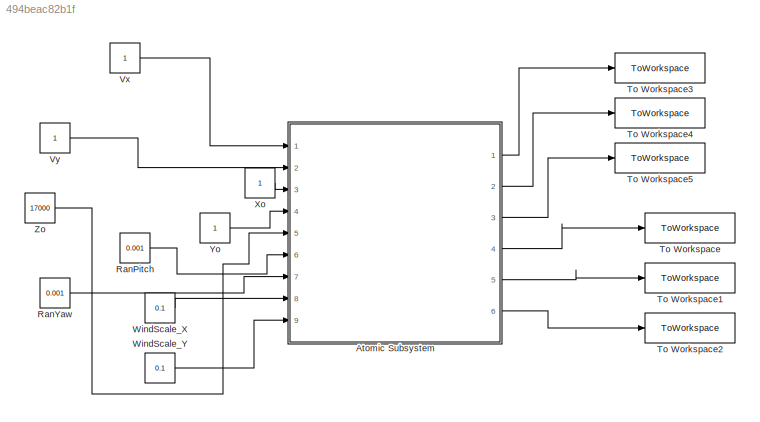
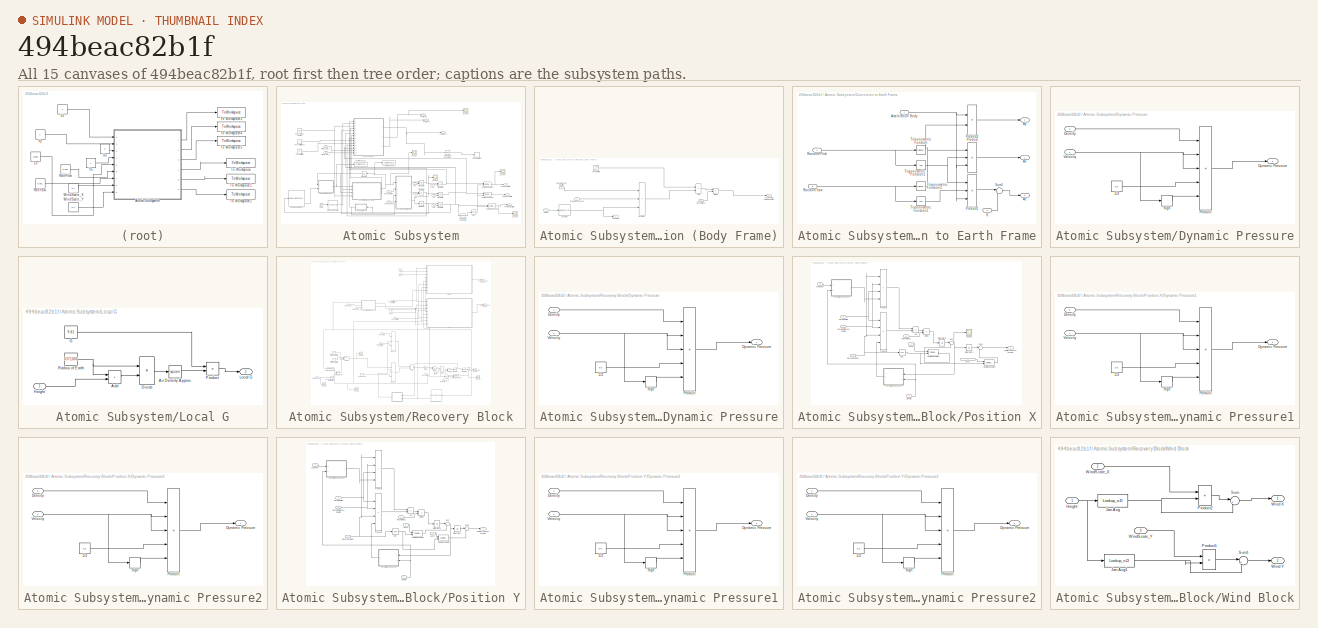
[diagram: thumbnail index - all 15 canvases of the model, root first then tree order]
MODEL slx_494beac82b1f
KIND model
CONFIG AbsTol = auto
CONFIG EnableMultiTasking = off
CONFIG FixedStep = 0.5
CONFIG MaxStep = auto
CONFIG MinStep = auto
CONFIG RelTol = 1e-3
CONFIG SampleTimeConstraint = Unconstrained
CONFIG Solver = ode4
CONFIG SolverName = ode4
CONFIG StartTime = 0.0
CONFIG StopTime = 50000
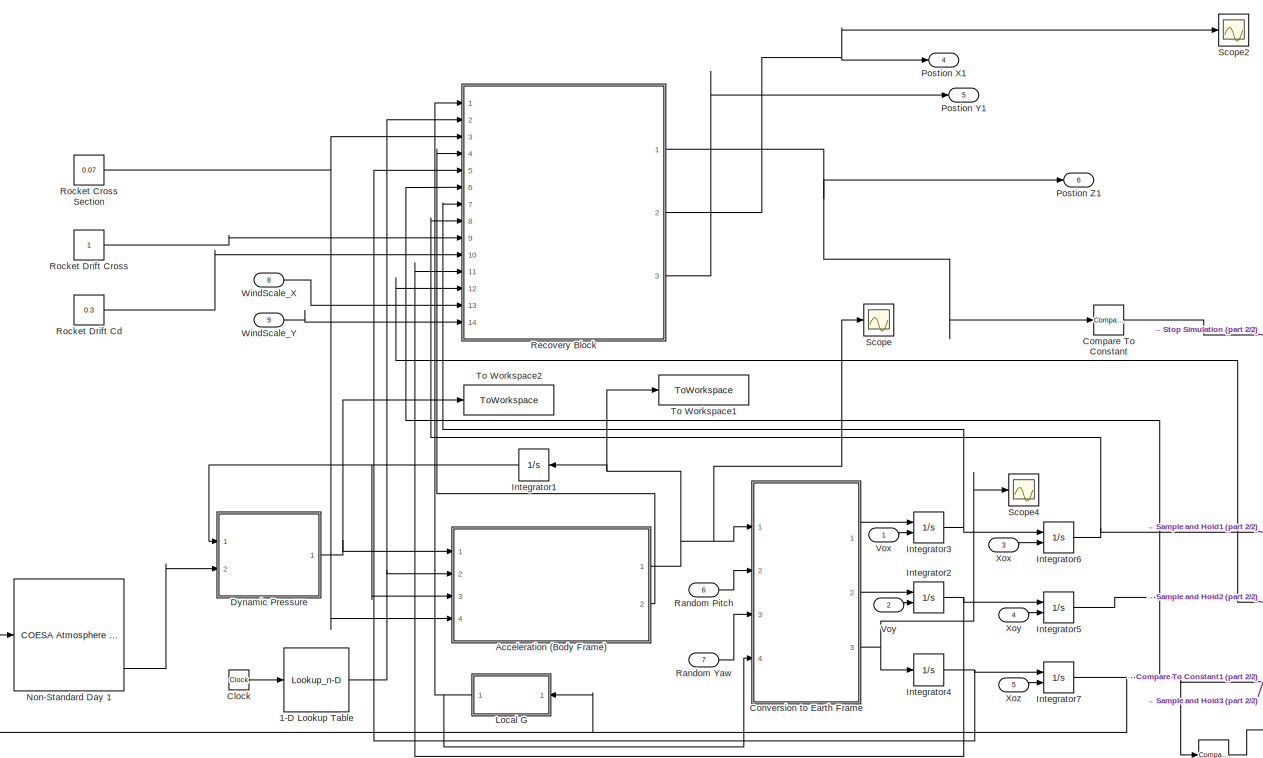
[diagram: Atomic Subsystem - part 1/2, most of the canvas]
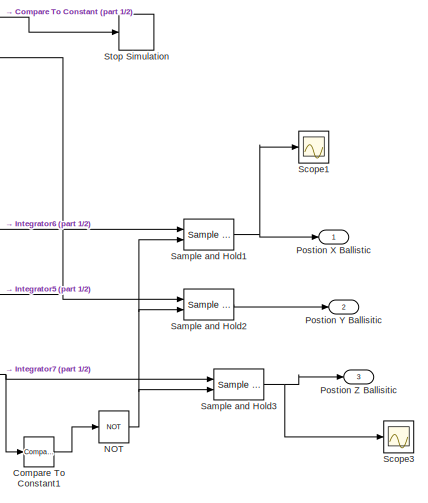
[diagram: Atomic Subsystem - part 2/2, bottom right region]
BLOCK [SubSystem] Atomic Subsystem
  Ports = [9, 6]
  RequestExecContextInheritance = off
  TreatAsAtomicUnit = on
BLOCK [Lookup_n-D] Atomic Subsystem/1-D Lookup Table
  BreakpointsForDimension1 = [0,2,5]
  ExtrapMethod = Clip
  InternalRulePriority = Speed
  NumberOfTableDimensions = 1
  Ports = [1, 1]
  RndMeth = Simplest
  Table = [44,30,22]
  UseLastTableValue = on
BLOCK [SubSystem] Atomic Subsystem/Acceleration (Body Frame)
  Ports = [4, 2]
  RequestExecContextInheritance = off
  TreatAsAtomicUnit = on
BLOCK [Outport] Atomic Subsystem/Acceleration (Body Frame)/Acceleration (BODY FRAME)
BLOCK [Sum] Atomic Subsystem/Acceleration (Body Frame)/Add
  IconShape = rectangular
  Inputs = +-
  Ports = [2, 1]
BLOCK [Lookup_n-D] Atomic Subsystem/Acceleration (Body Frame)/Cd Table
  BreakpointsForDimension1 = [0,0.05,0.1,0.6,0.9,1.1,1.2,2,3,4,5]
  ExtrapMethod = Clip
  InternalRulePriority = Speed
  NumberOfTableDimensions = 1
  Ports = [1, 1]
  RndMeth = Simplest
  Table = [0.48,0.4,0.42,0.4,0.44,0.54,0.52,0.36,0.24,0.18,0.14]
  UseLastTableValue = on
BLOCK [Product] Atomic Subsystem/Acceleration (Body Frame)/Divide
  Inputs = */
  Ports = [2, 1]
BLOCK [Inport] Atomic Subsystem/Acceleration (Body Frame)/Dynamc Pressure
BLOCK [Product] Atomic Subsystem/Acceleration (Body Frame)/Product
  Inputs = 3
  Ports = [3, 1]
BLOCK [Outport] Atomic Subsystem/Acceleration (Body Frame)/Rocket Cd
  Port = 2
BLOCK [Inport] Atomic Subsystem/Acceleration (Body Frame)/Rocket Cross Section
  Port = 4
BLOCK [Inport] Atomic Subsystem/Acceleration (Body Frame)/Rocket Mass
  Port = 2
BLOCK [Step] Atomic Subsystem/Acceleration (Body Frame)/Thrust Time
  After = 0
  Before = 5000
  SampleTime = 0
  Time = 6
  ZeroCross = off
BLOCK [Inport] Atomic Subsystem/Acceleration (Body Frame)/Velocity
  Port = 3
BLOCK [Clock] Atomic Subsystem/Clock
BLOCK [Reference] Atomic Subsystem/Compare To Constant  REF=simulink/Logic and Bit
Operations/Compare
To Constant
  Ports = [1, 1]
  SourceBlock = simulink/Logic and Bit\nOperations/Compare\nTo Constant
  SourceProductBaseCode = SL
  SourceType = Compare To Constant
BLOCK [Reference] Atomic Subsystem/Compare To Constant1  REF=simulink/Logic and Bit
Operations/Compare
To Constant
  Ports = [1, 1]
  SourceBlock = simulink/Logic and Bit\nOperations/Compare\nTo Constant
  SourceProductBaseCode = SL
  SourceType = Compare To Constant
BLOCK [SubSystem] Atomic Subsystem/Conversion to Earth Frame
  Ports = [4, 3]
  RequestExecContextInheritance = off
  TreatAsAtomicUnit = on
BLOCK [Inport] Atomic Subsystem/Conversion to Earth Frame/Acceleration Body
BLOCK [Outport] Atomic Subsystem/Conversion to Earth Frame/Ax
BLOCK [Outport] Atomic Subsystem/Conversion to Earth Frame/Ay
  Port = 2
BLOCK [Outport] Atomic Subsystem/Conversion to Earth Frame/Az
  Port = 3
BLOCK [Product] Atomic Subsystem/Conversion to Earth Frame/Product
  Inputs = 3
  Ports = [3, 1]
BLOCK [Product] Atomic Subsystem/Conversion to Earth Frame/Product1
  Inputs = 3
  Ports = [3, 1]
BLOCK [Product] Atomic Subsystem/Conversion to Earth Frame/Product2
  Ports = [2, 1]
BLOCK [Inport] Atomic Subsystem/Conversion to Earth Frame/Random Pitch
  Port = 2
BLOCK [Inport] Atomic Subsystem/Conversion to Earth Frame/Random Yaw
  Port = 3
BLOCK [Sum] Atomic Subsystem/Conversion to Earth Frame/Sum1
  Inputs = |+-
  Ports = [2, 1]
BLOCK [Trigonometry] Atomic Subsystem/Conversion to Earth Frame/Trigonometric Function
  Ports = [1, 1]
BLOCK [Trigonometry] Atomic Subsystem/Conversion to Earth Frame/Trigonometric Function1
  Operator = cos
  Ports = [1, 1]
BLOCK [Trigonometry] Atomic Subsystem/Conversion to Earth Frame/Trigonometric Function2
  Operator = cos
  Ports = [1, 1]
BLOCK [Trigonometry] Atomic Subsystem/Conversion to Earth Frame/Trigonometric Function3
  Ports = [1, 1]
BLOCK [Inport] Atomic Subsystem/Conversion to Earth Frame/g
  Port = 4
BLOCK [SubSystem] Atomic Subsystem/Dynamic Pressure
  Ports = [2, 1]
  RequestExecContextInheritance = off
  TreatAsAtomicUnit = on
BLOCK [Constant] Atomic Subsystem/Dynamic Pressure/1//2
  Value = 0.5
BLOCK [Inport] Atomic Subsystem/Dynamic Pressure/Density
  Port = 2
BLOCK [Outport] Atomic Subsystem/Dynamic Pressure/Dynamic Pressure
BLOCK [Product] Atomic Subsystem/Dynamic Pressure/Product
  Inputs = 5
  Ports = [5, 1]
BLOCK [Signum] Atomic Subsystem/Dynamic Pressure/Sign
BLOCK [Inport] Atomic Subsystem/Dynamic Pressure/Velocity 
BLOCK [Integrator] Atomic Subsystem/Integrator1
  InitialCondition = 1
  Ports = [1, 1]
BLOCK [Integrator] Atomic Subsystem/Integrator2
  InitialConditionSource = external
  Ports = [2, 1]
BLOCK [Integrator] Atomic Subsystem/Integrator3
  InitialConditionSource = external
  Ports = [2, 1]
BLOCK [Integrator] Atomic Subsystem/Integrator4
  Ports = [1, 1]
BLOCK [Integrator] Atomic Subsystem/Integrator5
  InitialConditionSource = external
  Ports = [2, 1]
BLOCK [Integrator] Atomic Subsystem/Integrator6
  InitialConditionSource = external
  Ports = [2, 1]
BLOCK [Integrator] Atomic Subsystem/Integrator7
  InitialConditionSource = external
  Ports = [2, 1]
BLOCK [SubSystem] Atomic Subsystem/Local G
  Ports = [1, 1]
  RequestExecContextInheritance = off
BLOCK [Sum] Atomic Subsystem/Local G/Add
  IconShape = rectangular
  Ports = [2, 1]
BLOCK [Math] Atomic Subsystem/Local G/Air Density Approx.
  Operator = square
  OutMax = 10000
  OutMin = 0
  Ports = [1, 1]
  SignedPower = on
BLOCK [Product] Atomic Subsystem/Local G/Divide
  Inputs = */
  Ports = [2, 1]
BLOCK [Constant] Atomic Subsystem/Local G/G
  Value = 9.81
BLOCK [Inport] Atomic Subsystem/Local G/Height
BLOCK [Outport] Atomic Subsystem/Local G/Local G
  VectorParamsAs1DForOutWhenUnconnected = off
BLOCK [Product] Atomic Subsystem/Local G/Product
  Ports = [2, 1]
BLOCK [Constant] Atomic Subsystem/Local G/Radius of Earth
  Value = 6371000
BLOCK [Logic] Atomic Subsystem/NOT
  AllPortsSameDT = off
  IconShape = distinctive
  Operator = NOT
  OutDataTypeStr = boolean
  Ports = [1, 1]
BLOCK [Reference] Atomic Subsystem/Non-Standard Day 1  REF=aerolibatmos2/COESA Atmosphere Model
  Ports = [1, 4]
  SourceBlock = aerolibatmos2/COESA Atmosphere Model
  SourceProductBaseCode = AE
  SourceType = Atmosphere Model
BLOCK [Outport] Atomic Subsystem/Postion X Ballistic
BLOCK [Outport] Atomic Subsystem/Postion X1
  Port = 4
BLOCK [Outport] Atomic Subsystem/Postion Y Ballisitic
  Port = 2
BLOCK [Outport] Atomic Subsystem/Postion Y1
  Port = 5
BLOCK [Outport] Atomic Subsystem/Postion Z Ballisitic
  Port = 3
BLOCK [Outport] Atomic Subsystem/Postion Z1
  Port = 6
BLOCK [Inport] Atomic Subsystem/Random Pitch
  Port = 6
BLOCK [Inport] Atomic Subsystem/Random Yaw
  Port = 7
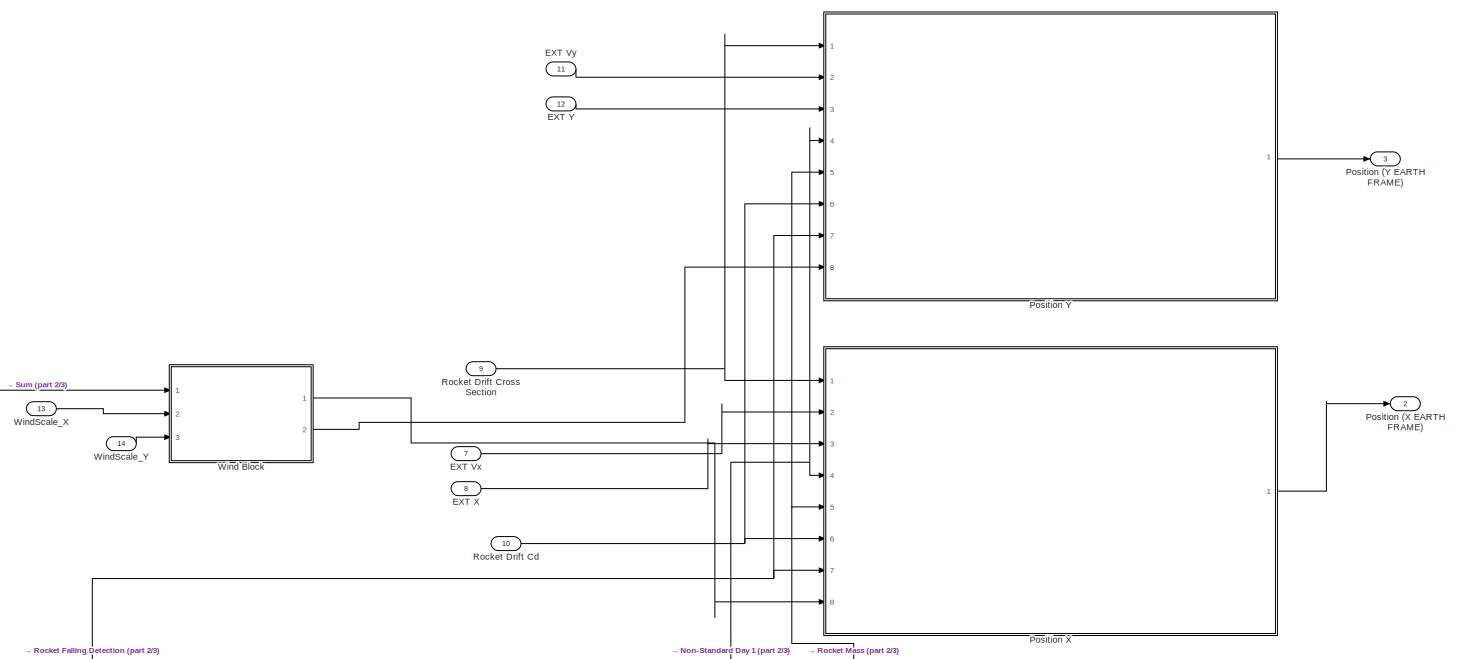
[diagram: Atomic Subsystem/Recovery Block - part 1/3, full width, top band]
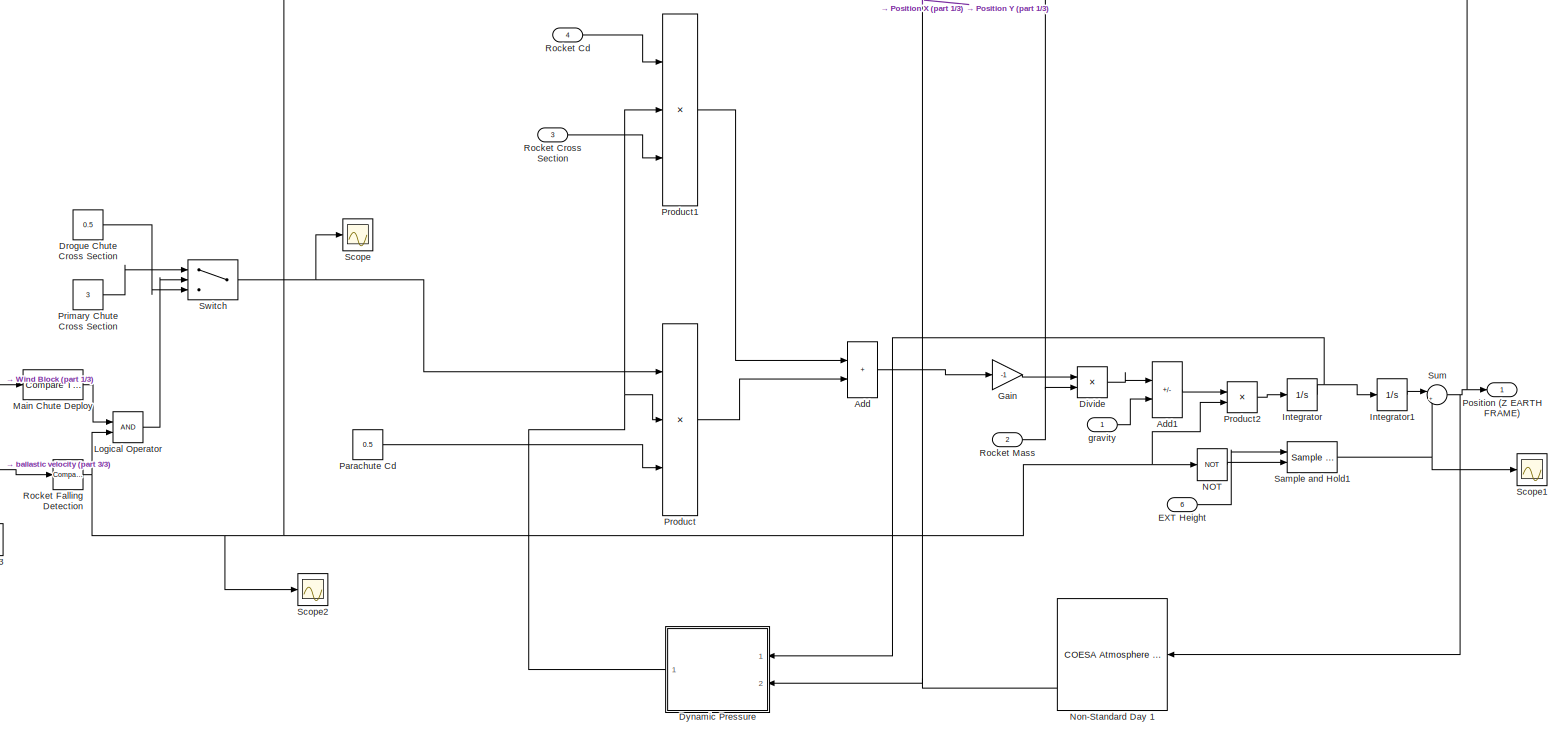
[diagram: Atomic Subsystem/Recovery Block - part 2/3, full width, bottom band]
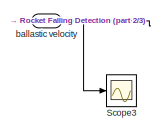
[diagram: Atomic Subsystem/Recovery Block - part 3/3, bottom left region]
BLOCK [SubSystem] Atomic Subsystem/Recovery Block
  Ports = [14, 3]
  RequestExecContextInheritance = off
  TreatAsAtomicUnit = on
BLOCK [Sum] Atomic Subsystem/Recovery Block/Add
  IconShape = rectangular
  Ports = [2, 1]
BLOCK [Sum] Atomic Subsystem/Recovery Block/Add1
  IconShape = rectangular
  Inputs = +-
  Ports = [2, 1]
BLOCK [Product] Atomic Subsystem/Recovery Block/Divide
  Inputs = */
  Ports = [2, 1]
BLOCK [Constant] Atomic Subsystem/Recovery Block/Drogue Chute Cross Section
  Value = 0.5
BLOCK [SubSystem] Atomic Subsystem/Recovery Block/Dynamic Pressure
  Ports = [2, 1]
  RequestExecContextInheritance = off
  TreatAsAtomicUnit = on
BLOCK [Constant] Atomic Subsystem/Recovery Block/Dynamic Pressure/1//2
  Value = 0.5
BLOCK [Inport] Atomic Subsystem/Recovery Block/Dynamic Pressure/Density
  Port = 2
BLOCK [Outport] Atomic Subsystem/Recovery Block/Dynamic Pressure/Dynamic Pressure
BLOCK [Product] Atomic Subsystem/Recovery Block/Dynamic Pressure/Product
  Inputs = 5
  Ports = [5, 1]
BLOCK [Signum] Atomic Subsystem/Recovery Block/Dynamic Pressure/Sign
BLOCK [Inport] Atomic Subsystem/Recovery Block/Dynamic Pressure/Velocity 
BLOCK [Inport] Atomic Subsystem/Recovery Block/EXT Height
  Port = 6
BLOCK [Inport] Atomic Subsystem/Recovery Block/EXT Vx
  Port = 7
BLOCK [Inport] Atomic Subsystem/Recovery Block/EXT Vy
  Port = 11
BLOCK [Inport] Atomic Subsystem/Recovery Block/EXT X
  Port = 8
BLOCK [Inport] Atomic Subsystem/Recovery Block/EXT Y
  Port = 12
BLOCK [Gain] Atomic Subsystem/Recovery Block/Gain
  Gain = -1
BLOCK [Integrator] Atomic Subsystem/Recovery Block/Integrator
  Ports = [1, 1]
BLOCK [Integrator] Atomic Subsystem/Recovery Block/Integrator1
  Ports = [1, 1]
BLOCK [Logic] Atomic Subsystem/Recovery Block/Logical Operator
  AllPortsSameDT = off
  OutDataTypeStr = boolean
  Ports = [2, 1]
BLOCK [Reference] Atomic Subsystem/Recovery Block/Main Chute Deploy  REF=simulink/Logic and Bit
Operations/Compare
To Constant
  Ports = [1, 1]
  SourceBlock = simulink/Logic and Bit\nOperations/Compare\nTo Constant
  SourceProductBaseCode = SL
  SourceType = Compare To Constant
BLOCK [Logic] Atomic Subsystem/Recovery Block/NOT
  AllPortsSameDT = off
  IconShape = distinctive
  Operator = NOT
  OutDataTypeStr = boolean
  Ports = [1, 1]
BLOCK [Reference] Atomic Subsystem/Recovery Block/Non-Standard Day 1  REF=aerolibatmos2/COESA Atmosphere Model
  Ports = [1, 4]
  SourceBlock = aerolibatmos2/COESA Atmosphere Model
  SourceProductBaseCode = AE
  SourceType = Atmosphere Model
BLOCK [Constant] Atomic Subsystem/Recovery Block/Parachute Cd
  Value = 0.5
BLOCK [Outport] Atomic Subsystem/Recovery Block/Position (X EARTH FRAME)
  Port = 2
BLOCK [Outport] Atomic Subsystem/Recovery Block/Position (Y EARTH FRAME)
  Port = 3
BLOCK [Outport] Atomic Subsystem/Recovery Block/Position (Z EARTH FRAME)
BLOCK [SubSystem] Atomic Subsystem/Recovery Block/Position X
  Ports = [8, 1]
  RequestExecContextInheritance = off
  TreatAsAtomicUnit = on
BLOCK [Sum] Atomic Subsystem/Recovery Block/Position X/Add
  IconShape = rectangular
  Inputs = +-
  Ports = [2, 1]
BLOCK [Inport] Atomic Subsystem/Recovery Block/Position X/Density
  Port = 4
BLOCK [Inport] Atomic Subsystem/Recovery Block/Position X/Descent Trigger
  Port = 7
BLOCK [Product] Atomic Subsystem/Recovery Block/Position X/Divide
  Inputs = */
  Ports = [2, 1]
BLOCK [SubSystem] Atomic Subsystem/Recovery Block/Position X/Dynamic Pressure1
  Ports = [2, 1]
  RequestExecContextInheritance = off
  TreatAsAtomicUnit = on
BLOCK [Constant] Atomic Subsystem/Recovery Block/Position X/Dynamic Pressure1/1//2
  Value = 0.5
BLOCK [Inport] Atomic Subsystem/Recovery Block/Position X/Dynamic Pressure1/Density
  Port = 2
BLOCK [Outport] Atomic Subsystem/Recovery Block/Position X/Dynamic Pressure1/Dynamic Pressure
BLOCK [Product] Atomic Subsystem/Recovery Block/Position X/Dynamic Pressure1/Product
  Inputs = 5
  Ports = [5, 1]
BLOCK [Signum] Atomic Subsystem/Recovery Block/Position X/Dynamic Pressure1/Sign
BLOCK [Inport] Atomic Subsystem/Recovery Block/Position X/Dynamic Pressure1/Velocity 
BLOCK [SubSystem] Atomic Subsystem/Recovery Block/Position X/Dynamic Pressure2
  Ports = [2, 1]
  RequestExecContextInheritance = off
  TreatAsAtomicUnit = on
BLOCK [Constant] Atomic Subsystem/Recovery Block/Position X/Dynamic Pressure2/1//2
  Value = 0.5
BLOCK [Inport] Atomic Subsystem/Recovery Block/Position X/Dynamic Pressure2/Density
  Port = 2
BLOCK [Outport] Atomic Subsystem/Recovery Block/Position X/Dynamic Pressure2/Dynamic Pressure
BLOCK [Product] Atomic Subsystem/Recovery Block/Position X/Dynamic Pressure2/Product
  Inputs = 5
  Ports = [5, 1]
BLOCK [Signum] Atomic Subsystem/Recovery Block/Position X/Dynamic Pressure2/Sign
BLOCK [Inport] Atomic Subsystem/Recovery Block/Position X/Dynamic Pressure2/Velocity 
BLOCK [Inport] Atomic Subsystem/Recovery Block/Position X/EXT Vx
  Port = 2
BLOCK [Inport] Atomic Subsystem/Recovery Block/Position X/EXT X
  Port = 3
BLOCK [Integrator] Atomic Subsystem/Recovery Block/Position X/Integrator2
  Ports = [1, 1]
BLOCK [Integrator] Atomic Subsystem/Recovery Block/Position X/Integrator3
  Ports = [1, 1]
BLOCK [Logic] Atomic Subsystem/Recovery Block/Position X/NOT
  AllPortsSameDT = off
  IconShape = distinctive
  Operator = NOT
  OutDataTypeStr = boolean
  Ports = [1, 1]
BLOCK [Outport] Atomic Subsystem/Recovery Block/Position X/Position (X EARTH FRAME)
BLOCK [Product] Atomic Subsystem/Recovery Block/Position X/Product1
  Inputs = 4
  Ports = [4, 1]
BLOCK [Product] Atomic Subsystem/Recovery Block/Position X/Product2
  Inputs = 4
  Ports = [4, 1]
BLOCK [Inport] Atomic Subsystem/Recovery Block/Position X/Rocket Drift Cd
  Port = 6
BLOCK [Inport] Atomic Subsystem/Recovery Block/Position X/Rocket Drift Cross Section
BLOCK [Inport] Atomic Subsystem/Recovery Block/Position X/Rocket Mass
  Port = 5
BLOCK [Reference] Atomic Subsystem/Recovery Block/Position X/Sample and Hold2  REF=powerlib_meascontrol/Additional Components/Sample and
Hold
  Ports = [2, 1]
  SourceBlock = powerlib_meascontrol/Additional Components/Sample and\nHold
  SourceProductBaseCode = PS
  SourceType = Sample and Hold
BLOCK [Reference] Atomic Subsystem/Recovery Block/Position X/Sample and Hold3  REF=powerlib_meascontrol/Additional Components/Sample and
Hold
  Ports = [2, 1]
  SourceBlock = powerlib_meascontrol/Additional Components/Sample and\nHold
  SourceProductBaseCode = PS
  SourceType = Sample and Hold
BLOCK [Scope] Atomic Subsystem/Recovery Block/Position X/Scope1
  Floating = off
  NumInputPorts = 1
  Ports = [1]
  ScopeSpecificationString = Simulink.scopes.TimeScopeBlockCfg('CurrentConfiguration', extmgr.ConfigurationSet(extmgr.Configuration('Core','General UI',true),extmgr.Configuration('Core','Source UI',true),extmgr.Configuration('Sources','WiredSimulink',true,'DataLoggingVariableName','ScopeData2'),extmgr.Configuration('Visuals','Time Domain',true,'SerializedDisplays',{struct('MinYLimReal','-2.20632','MaxYLimReal','6.71849','YLab...<+1412ch>
BLOCK [Sum] Atomic Subsystem/Recovery Block/Position X/Sum
  Inputs = |++
  Ports = [2, 1]
BLOCK [Sum] Atomic Subsystem/Recovery Block/Position X/Sum1
  Inputs = |++
  Ports = [2, 1]
BLOCK [Inport] Atomic Subsystem/Recovery Block/Position X/Wind Vel X
  Port = 8
BLOCK [SubSystem] Atomic Subsystem/Recovery Block/Position Y
  Ports = [8, 1]
  RequestExecContextInheritance = off
  TreatAsAtomicUnit = on
BLOCK [Sum] Atomic Subsystem/Recovery Block/Position Y/Add
  IconShape = rectangular
  Inputs = +-
  Ports = [2, 1]
BLOCK [Inport] Atomic Subsystem/Recovery Block/Position Y/Density
  Port = 4
BLOCK [Inport] Atomic Subsystem/Recovery Block/Position Y/Descent Trigger
  Port = 7
BLOCK [Product] Atomic Subsystem/Recovery Block/Position Y/Divide
  Inputs = */
  Ports = [2, 1]
BLOCK [SubSystem] Atomic Subsystem/Recovery Block/Position Y/Dynamic Pressure1
  Ports = [2, 1]
  RequestExecContextInheritance = off
  TreatAsAtomicUnit = on
BLOCK [Constant] Atomic Subsystem/Recovery Block/Position Y/Dynamic Pressure1/1//2
  Value = 0.5
BLOCK [Inport] Atomic Subsystem/Recovery Block/Position Y/Dynamic Pressure1/Density
  Port = 2
BLOCK [Outport] Atomic Subsystem/Recovery Block/Position Y/Dynamic Pressure1/Dynamic Pressure
BLOCK [Product] Atomic Subsystem/Recovery Block/Position Y/Dynamic Pressure1/Product
  Inputs = 5
  Ports = [5, 1]
BLOCK [Signum] Atomic Subsystem/Recovery Block/Position Y/Dynamic Pressure1/Sign
BLOCK [Inport] Atomic Subsystem/Recovery Block/Position Y/Dynamic Pressure1/Velocity 
BLOCK [SubSystem] Atomic Subsystem/Recovery Block/Position Y/Dynamic Pressure2
  Ports = [2, 1]
  RequestExecContextInheritance = off
  TreatAsAtomicUnit = on
BLOCK [Constant] Atomic Subsystem/Recovery Block/Position Y/Dynamic Pressure2/1//2
  Value = 0.5
BLOCK [Inport] Atomic Subsystem/Recovery Block/Position Y/Dynamic Pressure2/Density
  Port = 2
BLOCK [Outport] Atomic Subsystem/Recovery Block/Position Y/Dynamic Pressure2/Dynamic Pressure
BLOCK [Product] Atomic Subsystem/Recovery Block/Position Y/Dynamic Pressure2/Product
  Inputs = 5
  Ports = [5, 1]
BLOCK [Signum] Atomic Subsystem/Recovery Block/Position Y/Dynamic Pressure2/Sign
BLOCK [Inport] Atomic Subsystem/Recovery Block/Position Y/Dynamic Pressure2/Velocity 
BLOCK [Inport] Atomic Subsystem/Recovery Block/Position Y/EXT Vy
  Port = 2
BLOCK [Inport] Atomic Subsystem/Recovery Block/Position Y/EXT Y
  Port = 3
BLOCK [Integrator] Atomic Subsystem/Recovery Block/Position Y/Integrator2
  Ports = [1, 1]
BLOCK [Integrator] Atomic Subsystem/Recovery Block/Position Y/Integrator3
  Ports = [1, 1]
BLOCK [Logic] Atomic Subsystem/Recovery Block/Position Y/NOT
  AllPortsSameDT = off
  IconShape = distinctive
  Operator = NOT
  OutDataTypeStr = boolean
  Ports = [1, 1]
BLOCK [Outport] Atomic Subsystem/Recovery Block/Position Y/Position (Y EARTH FRAME)
BLOCK [Product] Atomic Subsystem/Recovery Block/Position Y/Product1
  Inputs = 4
  Ports = [4, 1]
BLOCK [Product] Atomic Subsystem/Recovery Block/Position Y/Product2
  Inputs = 4
  Ports = [4, 1]
BLOCK [Inport] Atomic Subsystem/Recovery Block/Position Y/Rocket Drift Cd
  Port = 6
BLOCK [Inport] Atomic Subsystem/Recovery Block/Position Y/Rocket Drift Cross Section
BLOCK [Inport] Atomic Subsystem/Recovery Block/Position Y/Rocket Mass
  Port = 5
BLOCK [Reference] Atomic Subsystem/Recovery Block/Position Y/Sample and Hold2  REF=powerlib_meascontrol/Additional Components/Sample and
Hold
  Ports = [2, 1]
  SourceBlock = powerlib_meascontrol/Additional Components/Sample and\nHold
  SourceProductBaseCode = PS
  SourceType = Sample and Hold
BLOCK [Reference] Atomic Subsystem/Recovery Block/Position Y/Sample and Hold3  REF=powerlib_meascontrol/Additional Components/Sample and
Hold
  Ports = [2, 1]
  SourceBlock = powerlib_meascontrol/Additional Components/Sample and\nHold
  SourceProductBaseCode = PS
  SourceType = Sample and Hold
BLOCK [Sum] Atomic Subsystem/Recovery Block/Position Y/Sum
  Inputs = |++
  Ports = [2, 1]
BLOCK [Sum] Atomic Subsystem/Recovery Block/Position Y/Sum1
  Inputs = |++
  Ports = [2, 1]
BLOCK [Inport] Atomic Subsystem/Recovery Block/Position Y/Wind Vel Y
  Port = 8
BLOCK [Constant] Atomic Subsystem/Recovery Block/Primary Chute Cross Section
  Value = 3
BLOCK [Product] Atomic Subsystem/Recovery Block/Product
  Inputs = 3
  Ports = [3, 1]
BLOCK [Product] Atomic Subsystem/Recovery Block/Product1
  Inputs = 3
  Ports = [3, 1]
BLOCK [Product] Atomic Subsystem/Recovery Block/Product2
  Ports = [2, 1]
BLOCK [Inport] Atomic Subsystem/Recovery Block/Rocket Cd
  Port = 4
BLOCK [Inport] Atomic Subsystem/Recovery Block/Rocket Cross Section
  Port = 3
BLOCK [Inport] Atomic Subsystem/Recovery Block/Rocket Drift Cd
  Port = 10
BLOCK [Inport] Atomic Subsystem/Recovery Block/Rocket Drift Cross Section
  Port = 9
BLOCK [Reference] Atomic Subsystem/Recovery Block/Rocket Falling Detection  REF=simulink/Logic and Bit
Operations/Compare
To Constant
  Ports = [1, 1]
  SourceBlock = simulink/Logic and Bit\nOperations/Compare\nTo Constant
  SourceProductBaseCode = SL
  SourceType = Compare To Constant
BLOCK [Inport] Atomic Subsystem/Recovery Block/Rocket Mass
  Port = 2
BLOCK [Reference] Atomic Subsystem/Recovery Block/Sample and Hold1  REF=powerlib_meascontrol/Additional Components/Sample and
Hold
  Ports = [2, 1]
  SourceBlock = powerlib_meascontrol/Additional Components/Sample and\nHold
  SourceProductBaseCode = PS
  SourceType = Sample and Hold
BLOCK [Scope] Atomic Subsystem/Recovery Block/Scope
  Floating = off
  NumInputPorts = 1
  Ports = [1]
  ScopeSpecificationString = Simulink.scopes.TimeScopeBlockCfg('CurrentConfiguration', extmgr.ConfigurationSet(extmgr.Configuration('Core','General UI',true),extmgr.Configuration('Core','Source UI',true),extmgr.Configuration('Sources','WiredSimulink',true),extmgr.Configuration('Visuals','Time Domain',true,'SerializedDisplays',{struct('MinYLimReal','0.1875','MaxYLimReal','3.3125','YLabelReal','','MinYLimMag','0.1875','MaxYLimM...<+1349ch>
BLOCK [Scope] Atomic Subsystem/Recovery Block/Scope1
  Floating = off
  NumInputPorts = 1
  Ports = [1]
  ScopeSpecificationString = Simulink.scopes.TimeScopeBlockCfg('CurrentConfiguration', extmgr.ConfigurationSet(extmgr.Configuration('Core','General UI',true),extmgr.Configuration('Core','Source UI',true),extmgr.Configuration('Sources','WiredSimulink',true,'DataLoggingVariableName','ScopeData1'),extmgr.Configuration('Visuals','Time Domain',true,'SerializedDisplays',{struct('MinYLimReal','-2700.4755','MaxYLimReal','24404.27949'...<+1430ch>
BLOCK [Scope] Atomic Subsystem/Recovery Block/Scope2
  Floating = off
  NumInputPorts = 1
  Ports = [1]
  ScopeSpecificationString = Simulink.scopes.TimeScopeBlockCfg('CurrentConfiguration', extmgr.ConfigurationSet(extmgr.Configuration('Core','General UI',true),extmgr.Configuration('Core','Source UI',true),extmgr.Configuration('Sources','WiredSimulink',true,'DataLoggingVariableName','ScopeData2'),extmgr.Configuration('Visuals','Time Domain',true,'SerializedDisplays',{struct('MinYLimReal','-0.125','MaxYLimReal','1.125','YLabelRe...<+1402ch>
BLOCK [Scope] Atomic Subsystem/Recovery Block/Scope3
  Floating = off
  NumInputPorts = 1
  Ports = [1]
  ScopeSpecificationString = Simulink.scopes.TimeScopeBlockCfg('CurrentConfiguration', extmgr.ConfigurationSet(extmgr.Configuration('Core','General UI',true),extmgr.Configuration('Core','Source UI',true),extmgr.Configuration('Sources','WiredSimulink',true,'DataLoggingVariableName','ScopeData3'),extmgr.Configuration('Visuals','Time Domain',true,'SerializedDisplays',{struct('MinYLimReal','-1174.04468','MaxYLimReal','787.97772',...<+1428ch>
BLOCK [Sum] Atomic Subsystem/Recovery Block/Sum
  Inputs = |++
  Ports = [2, 1]
BLOCK [Switch] Atomic Subsystem/Recovery Block/Switch
  Criteria = u2 > Threshold
  InputSameDT = off
  SaturateOnIntegerOverflow = off
BLOCK [SubSystem] Atomic Subsystem/Recovery Block/Wind Block
  Ports = [3, 2]
  RequestExecContextInheritance = off
  TreatAsAtomicUnit = on
BLOCK [Inport] Atomic Subsystem/Recovery Block/Wind Block/Height
BLOCK [Lookup_n-D] Atomic Subsystem/Recovery Block/Wind Block/Jan Avg
  BreakpointsForDimension1 = [0,5000,10000,15000,20000,24000,100000]
  ExtrapMethod = Clip
  InternalRulePriority = Speed
  InterpMethod = Cubic spline
  NumberOfTableDimensions = 1
  Ports = [1, 1]
  RndMeth = Simplest
  Table = [2,17,30,22,5,2,0]
  UseLastTableValue = on
BLOCK [Lookup_n-D] Atomic Subsystem/Recovery Block/Wind Block/Jan Avg1
  BreakpointsForDimension1 = [0,5000,10000,15000,20000,24000,100000]
  ExtrapMethod = Clip
  InternalRulePriority = Speed
  InterpMethod = Cubic spline
  NumberOfTableDimensions = 1
  Ports = [1, 1]
  RndMeth = Simplest
  Table = [2,17,30,22,5,2,0]
  UseLastTableValue = on
BLOCK [Product] Atomic Subsystem/Recovery Block/Wind Block/Product1
  Ports = [2, 1]
BLOCK [Product] Atomic Subsystem/Recovery Block/Wind Block/Product2
  Ports = [2, 1]
BLOCK [Sum] Atomic Subsystem/Recovery Block/Wind Block/Sum
  Inputs = |++
  Ports = [2, 1]
BLOCK [Sum] Atomic Subsystem/Recovery Block/Wind Block/Sum1
  Inputs = |++
  Ports = [2, 1]
BLOCK [Outport] Atomic Subsystem/Recovery Block/Wind Block/Wind X
BLOCK [Outport] Atomic Subsystem/Recovery Block/Wind Block/Wind Y
  Port = 2
BLOCK [Inport] Atomic Subsystem/Recovery Block/Wind Block/WindScale_X
  Port = 2
BLOCK [Inport] Atomic Subsystem/Recovery Block/Wind Block/WindScale_Y
  Port = 3
BLOCK [Inport] Atomic Subsystem/Recovery Block/WindScale_X
  Port = 13
BLOCK [Inport] Atomic Subsystem/Recovery Block/WindScale_Y
  Port = 14
BLOCK [Inport] Atomic Subsystem/Recovery Block/ballastic velocity
  Port = 5
BLOCK [Inport] Atomic Subsystem/Recovery Block/gravity 
BLOCK [Constant] Atomic Subsystem/Rocket Cross Section
  Value = 0.07
BLOCK [Constant] Atomic Subsystem/Rocket Drift Cd
  Value = 0.3
BLOCK [Constant] Atomic Subsystem/Rocket Drift Cross
BLOCK [Reference] Atomic Subsystem/Sample and Hold1  REF=powerlib_meascontrol/Additional Components/Sample and
Hold
  Ports = [2, 1]
  SourceBlock = powerlib_meascontrol/Additional Components/Sample and\nHold
  SourceProductBaseCode = PS
  SourceType = Sample and Hold
BLOCK [Reference] Atomic Subsystem/Sample and Hold2  REF=powerlib_meascontrol/Additional Components/Sample and
Hold
  Ports = [2, 1]
  SourceBlock = powerlib_meascontrol/Additional Components/Sample and\nHold
  SourceProductBaseCode = PS
  SourceType = Sample and Hold
BLOCK [Reference] Atomic Subsystem/Sample and Hold3  REF=powerlib_meascontrol/Additional Components/Sample and
Hold
  Ports = [2, 1]
  SourceBlock = powerlib_meascontrol/Additional Components/Sample and\nHold
  SourceProductBaseCode = PS
  SourceType = Sample and Hold
BLOCK [Scope] Atomic Subsystem/Scope
  Floating = off
  NumInputPorts = 1
  Ports = [1]
  ScopeSpecificationString = Simulink.scopes.TimeScopeBlockCfg('CurrentConfiguration', extmgr.ConfigurationSet(extmgr.Configuration('Core','General UI',true),extmgr.Configuration('Core','Source UI',true),extmgr.Configuration('Sources','WiredSimulink',true,'DataLoggingVariableName','ScopeData1'),extmgr.Configuration('Visuals','Time Domain',true,'SerializedDisplays',{struct('MinYLimReal','-188.27626','MaxYLimReal','171.14317','...<+1373ch>
BLOCK [Scope] Atomic Subsystem/Scope1
  Floating = off
  NumInputPorts = 1
  Ports = [1]
  ScopeSpecificationString = Simulink.scopes.TimeScopeBlockCfg('CurrentConfiguration', extmgr.ConfigurationSet(extmgr.Configuration('Core','General UI',true),extmgr.Configuration('Core','Source UI',true),extmgr.Configuration('Sources','WiredSimulink',true,'DataLoggingVariableName','ScopeData1'),extmgr.Configuration('Visuals','Time Domain',true,'SerializedDisplays',{struct('MinYLimReal','-59.43821','MaxYLimReal','184.13108','Y...<+1435ch>
BLOCK [Scope] Atomic Subsystem/Scope2
  Floating = off
  NumInputPorts = 1
  Ports = [1]
  ScopeSpecificationString = Simulink.scopes.TimeScopeBlockCfg('CurrentConfiguration', extmgr.ConfigurationSet(extmgr.Configuration('Core','General UI',true),extmgr.Configuration('Core','Source UI',true),extmgr.Configuration('Sources','WiredSimulink',true,'DataLoggingVariableName','ScopeData3'),extmgr.Configuration('Visuals','Time Domain',true,'SerializedDisplays',{struct('MinYLimReal','-52.37779','MaxYLimReal','471.40011','Y...<+1435ch>
BLOCK [Scope] Atomic Subsystem/Scope3
  Floating = off
  NumInputPorts = 1
  Ports = [1]
  ScopeSpecificationString = Simulink.scopes.TimeScopeBlockCfg('CurrentConfiguration', extmgr.ConfigurationSet(extmgr.Configuration('Core','General UI',true),extmgr.Configuration('Core','Source UI',true),extmgr.Configuration('Sources','WiredSimulink',true,'DataLoggingVariableName','ScopeData4'),extmgr.Configuration('Visuals','Time Domain',true,'SerializedDisplays',{struct('MinYLimReal','-5835.3373','MaxYLimReal','54414.26695'...<+1449ch>
BLOCK [Scope] Atomic Subsystem/Scope4
  Floating = off
  NumInputPorts = 1
  Ports = [1]
  ScopeSpecificationString = Simulink.scopes.TimeScopeBlockCfg('CurrentConfiguration', extmgr.ConfigurationSet(extmgr.Configuration('Core','General UI',true),extmgr.Configuration('Core','Source UI',true),extmgr.Configuration('Sources','WiredSimulink',true,'DataLoggingVariableName','ScopeData5'),extmgr.Configuration('Visuals','Time Domain',true,'SerializedDisplays',{struct('MinYLimReal','-168794.29455','MaxYLimReal','1689148.6...<+1467ch>
BLOCK [Stop] Atomic Subsystem/Stop Simulation
BLOCK [ToWorkspace] Atomic Subsystem/To Workspace1
  FixptAsFi = on
  MaxDataPoints = inf
  Ports = [1]
  SampleTime = -1
  VariableName = Acceleration
BLOCK [ToWorkspace] Atomic Subsystem/To Workspace2
  FixptAsFi = on
  MaxDataPoints = inf
  Ports = [1]
  SampleTime = -1
  VariableName = DynPressure
BLOCK [Inport] Atomic Subsystem/Vox
BLOCK [Inport] Atomic Subsystem/Voy
  Port = 2
BLOCK [Inport] Atomic Subsystem/WindScale_X
  Port = 8
BLOCK [Inport] Atomic Subsystem/WindScale_Y
  Port = 9
BLOCK [Inport] Atomic Subsystem/Xox
  Port = 3
BLOCK [Inport] Atomic Subsystem/Xoy
  Port = 4
BLOCK [Inport] Atomic Subsystem/Xoz
  Port = 5
BLOCK [Constant] RanPitch
  Value = 0.001
BLOCK [Constant] RanYaw
  Value = 0.001
BLOCK [ToWorkspace] To Workspace
  FixptAsFi = on
  MaxDataPoints = inf
  Ports = [1]
  SampleTime = -1
  VariableName = X
BLOCK [ToWorkspace] To Workspace1
  FixptAsFi = on
  MaxDataPoints = inf
  Ports = [1]
  SampleTime = -1
  VariableName = Y
BLOCK [ToWorkspace] To Workspace2
  FixptAsFi = on
  MaxDataPoints = inf
  Ports = [1]
  SampleTime = -1
  VariableName = Z
BLOCK [ToWorkspace] To Workspace3
  FixptAsFi = on
  MaxDataPoints = inf
  Ports = [1]
  SampleTime = -1
  VariableName = X_ballisitic
BLOCK [ToWorkspace] To Workspace4
  FixptAsFi = on
  MaxDataPoints = inf
  Ports = [1]
  SampleTime = -1
  VariableName = Y_ballisitic
BLOCK [ToWorkspace] To Workspace5
  FixptAsFi = on
  MaxDataPoints = inf
  Ports = [1]
  SampleTime = -1
  VariableName = Z_ballisitic
BLOCK [Constant] Vx
BLOCK [Constant] Vy
BLOCK [Constant] WindScale_X
  Value = 0.1
BLOCK [Constant] WindScale_Y
  Value = 0.1
BLOCK [Constant] Xo
BLOCK [Constant] Yo
BLOCK [Constant] Zo
  Value = 17000
NET Atomic Subsystem/1-D Lookup Table:1 -> Atomic Subsystem/Acceleration (Body Frame):2, Atomic Subsystem/Recovery Block:2
LINE Atomic Subsystem/Acceleration (Body Frame)/Add:1 -> Atomic Subsystem/Acceleration (Body Frame)/Divide:1
NET Atomic Subsystem/Acceleration (Body Frame)/Cd Table:1 -> Atomic Subsystem/Acceleration (Body Frame)/Product:3, Atomic Subsystem/Acceleration (Body Frame)/Rocket Cd:1
LINE Atomic Subsystem/Acceleration (Body Frame)/Divide:1 -> Atomic Subsystem/Acceleration (Body Frame)/Acceleration (BODY FRAME):1
LINE Atomic Subsystem/Acceleration (Body Frame)/Dynamc Pressure:1 -> Atomic Subsystem/Acceleration (Body Frame)/Product:2
LINE Atomic Subsystem/Acceleration (Body Frame)/Product:1 -> Atomic Subsystem/Acceleration (Body Frame)/Add:2
LINE Atomic Subsystem/Acceleration (Body Frame)/Rocket Cross Section:1 -> Atomic Subsystem/Acceleration (Body Frame)/Product:1
LINE Atomic Subsystem/Acceleration (Body Frame)/Rocket Mass:1 -> Atomic Subsystem/Acceleration (Body Frame)/Divide:2
LINE Atomic Subsystem/Acceleration (Body Frame)/Thrust Time:1 -> Atomic Subsystem/Acceleration (Body Frame)/Add:1
LINE Atomic Subsystem/Acceleration (Body Frame)/Velocity:1 -> Atomic Subsystem/Acceleration (Body Frame)/Cd Table:1
NET Atomic Subsystem/Acceleration (Body Frame):1 -> Atomic Subsystem/Conversion to Earth Frame:1, Atomic Subsystem/Integrator1:1, Atomic Subsystem/Scope:1, Atomic Subsystem/To Workspace1:1
LINE Atomic Subsystem/Acceleration (Body Frame):2 -> Atomic Subsystem/Recovery Block:4
LINE Atomic Subsystem/Clock:1 -> Atomic Subsystem/1-D Lookup Table:1
LINE Atomic Subsystem/Compare To Constant1:1 -> Atomic Subsystem/NOT:1
LINE Atomic Subsystem/Compare To Constant:1 -> Atomic Subsystem/Stop Simulation:1
NET Atomic Subsystem/Conversion to Earth Frame/Acceleration Body:1 -> Atomic Subsystem/Conversion to Earth Frame/Product1:3, Atomic Subsystem/Conversion to Earth Frame/Product2:1, Atomic Subsystem/Conversion to Earth Frame/Product:3
LINE Atomic Subsystem/Conversion to Earth Frame/Product1:1 -> Atomic Subsystem/Conversion to Earth Frame/Sum1:1
LINE Atomic Subsystem/Conversion to Earth Frame/Product2:1 -> Atomic Subsystem/Conversion to Earth Frame/Ay:1
LINE Atomic Subsystem/Conversion to Earth Frame/Product:1 -> Atomic Subsystem/Conversion to Earth Frame/Ax:1
NET Atomic Subsystem/Conversion to Earth Frame/Random Pitch:1 -> Atomic Subsystem/Conversion to Earth Frame/Trigonometric Function1:1, Atomic Subsystem/Conversion to Earth Frame/Trigonometric Function:1
NET Atomic Subsystem/Conversion to Earth Frame/Random Yaw:1 -> Atomic Subsystem/Conversion to Earth Frame/Trigonometric Function2:1, Atomic Subsystem/Conversion to Earth Frame/Trigonometric Function3:1
LINE Atomic Subsystem/Conversion to Earth Frame/Sum1:1 -> Atomic Subsystem/Conversion to Earth Frame/Az:1
NET Atomic Subsystem/Conversion to Earth Frame/Trigonometric Function1:1 -> Atomic Subsystem/Conversion to Earth Frame/Product1:1, Atomic Subsystem/Conversion to Earth Frame/Product:2
LINE Atomic Subsystem/Conversion to Earth Frame/Trigonometric Function2:1 -> Atomic Subsystem/Conversion to Earth Frame/Product1:2
LINE Atomic Subsystem/Conversion to Earth Frame/Trigonometric Function3:1 -> Atomic Subsystem/Conversion to Earth Frame/Product:1
LINE Atomic Subsystem/Conversion to Earth Frame/Trigonometric Function:1 -> Atomic Subsystem/Conversion to Earth Frame/Product2:2
LINE Atomic Subsystem/Conversion to Earth Frame/g:1 -> Atomic Subsystem/Conversion to Earth Frame/Sum1:2
LINE Atomic Subsystem/Conversion to Earth Frame:1 -> Atomic Subsystem/Integrator3:1
LINE Atomic Subsystem/Conversion to Earth Frame:2 -> Atomic Subsystem/Integrator2:1
NET Atomic Subsystem/Conversion to Earth Frame:3 -> Atomic Subsystem/Integrator4:1, Atomic Subsystem/Scope4:1
LINE Atomic Subsystem/Dynamic Pressure/1//2:1 -> Atomic Subsystem/Dynamic Pressure/Product:4
LINE Atomic Subsystem/Dynamic Pressure/Density:1 -> Atomic Subsystem/Dynamic Pressure/Product:1
LINE Atomic Subsystem/Dynamic Pressure/Product:1 -> Atomic Subsystem/Dynamic Pressure/Dynamic Pressure:1
LINE Atomic Subsystem/Dynamic Pressure/Sign:1 -> Atomic Subsystem/Dynamic Pressure/Product:5
NET Atomic Subsystem/Dynamic Pressure/Velocity :1 -> Atomic Subsystem/Dynamic Pressure/Product:2, Atomic Subsystem/Dynamic Pressure/Product:3, Atomic Subsystem/Dynamic Pressure/Sign:1
NET Atomic Subsystem/Dynamic Pressure:1 -> Atomic Subsystem/Acceleration (Body Frame):1, Atomic Subsystem/To Workspace2:1
NET Atomic Subsystem/Integrator1:1 -> Atomic Subsystem/Acceleration (Body Frame):3, Atomic Subsystem/Dynamic Pressure:1
NET Atomic Subsystem/Integrator2:1 -> Atomic Subsystem/Integrator5:1, Atomic Subsystem/Recovery Block:11
NET Atomic Subsystem/Integrator3:1 -> Atomic Subsystem/Integrator6:1, Atomic Subsystem/Recovery Block:7
NET Atomic Subsystem/Integrator4:1 -> Atomic Subsystem/Integrator7:1, Atomic Subsystem/Recovery Block:5
NET Atomic Subsystem/Integrator5:1 -> Atomic Subsystem/Recovery Block:12, Atomic Subsystem/Sample and Hold2:1
NET Atomic Subsystem/Integrator6:1 -> Atomic Subsystem/Recovery Block:8, Atomic Subsystem/Sample and Hold1:1
NET Atomic Subsystem/Integrator7:1 -> Atomic Subsystem/Compare To Constant1:1, Atomic Subsystem/Local G:1, Atomic Subsystem/Non-Standard Day 1:1, Atomic Subsystem/Recovery Block:6, Atomic Subsystem/Sample and Hold3:1
LINE Atomic Subsystem/Local G/Add:1 -> Atomic Subsystem/Local G/Divide:2
LINE Atomic Subsystem/Local G/Air Density Approx.:1 -> Atomic Subsystem/Local G/Product:2
LINE Atomic Subsystem/Local G/Divide:1 -> Atomic Subsystem/Local G/Air Density Approx.:1
LINE Atomic Subsystem/Local G/G:1 -> Atomic Subsystem/Local G/Product:1
LINE Atomic Subsystem/Local G/Height:1 -> Atomic Subsystem/Local G/Add:2
LINE Atomic Subsystem/Local G/Product:1 -> Atomic Subsystem/Local G/Local G:1
NET Atomic Subsystem/Local G/Radius of Earth:1 -> Atomic Subsystem/Local G/Add:1, Atomic Subsystem/Local G/Divide:1
NET Atomic Subsystem/Local G:1 -> Atomic Subsystem/Conversion to Earth Frame:4, Atomic Subsystem/Recovery Block:1
NET Atomic Subsystem/NOT:1 -> Atomic Subsystem/Sample and Hold1:2, Atomic Subsystem/Sample and Hold2:2, Atomic Subsystem/Sample and Hold3:2
LINE Atomic Subsystem/Non-Standard Day 1:4 -> Atomic Subsystem/Dynamic Pressure:2
LINE Atomic Subsystem/Random Pitch:1 -> Atomic Subsystem/Conversion to Earth Frame:2
LINE Atomic Subsystem/Random Yaw:1 -> Atomic Subsystem/Conversion to Earth Frame:3
LINE Atomic Subsystem/Recovery Block/Add1:1 -> Atomic Subsystem/Recovery Block/Product2:1
LINE Atomic Subsystem/Recovery Block/Add:1 -> Atomic Subsystem/Recovery Block/Gain:1
LINE Atomic Subsystem/Recovery Block/Divide:1 -> Atomic Subsystem/Recovery Block/Add1:1
LINE Atomic Subsystem/Recovery Block/Drogue Chute Cross Section:1 -> Atomic Subsystem/Recovery Block/Switch:3
LINE Atomic Subsystem/Recovery Block/Dynamic Pressure/1//2:1 -> Atomic Subsystem/Recovery Block/Dynamic Pressure/Product:4
LINE Atomic Subsystem/Recovery Block/Dynamic Pressure/Density:1 -> Atomic Subsystem/Recovery Block/Dynamic Pressure/Product:1
LINE Atomic Subsystem/Recovery Block/Dynamic Pressure/Product:1 -> Atomic Subsystem/Recovery Block/Dynamic Pressure/Dynamic Pressure:1
LINE Atomic Subsystem/Recovery Block/Dynamic Pressure/Sign:1 -> Atomic Subsystem/Recovery Block/Dynamic Pressure/Product:5
NET Atomic Subsystem/Recovery Block/Dynamic Pressure/Velocity :1 -> Atomic Subsystem/Recovery Block/Dynamic Pressure/Product:2, Atomic Subsystem/Recovery Block/Dynamic Pressure/Product:3, Atomic Subsystem/Recovery Block/Dynamic Pressure/Sign:1
NET Atomic Subsystem/Recovery Block/Dynamic Pressure:1 -> Atomic Subsystem/Recovery Block/Product1:2, Atomic Subsystem/Recovery Block/Product:2
LINE Atomic Subsystem/Recovery Block/EXT Height:1 -> Atomic Subsystem/Recovery Block/Sample and Hold1:1
LINE Atomic Subsystem/Recovery Block/EXT Vx:1 -> Atomic Subsystem/Recovery Block/Position X:2
LINE Atomic Subsystem/Recovery Block/EXT Vy:1 -> Atomic Subsystem/Recovery Block/Position Y:2
LINE Atomic Subsystem/Recovery Block/EXT X:1 -> Atomic Subsystem/Recovery Block/Position X:3
LINE Atomic Subsystem/Recovery Block/EXT Y:1 -> Atomic Subsystem/Recovery Block/Position Y:3
LINE Atomic Subsystem/Recovery Block/Gain:1 -> Atomic Subsystem/Recovery Block/Divide:1
LINE Atomic Subsystem/Recovery Block/Integrator1:1 -> Atomic Subsystem/Recovery Block/Sum:1
NET Atomic Subsystem/Recovery Block/Integrator:1 -> Atomic Subsystem/Recovery Block/Dynamic Pressure:1, Atomic Subsystem/Recovery Block/Integrator1:1
LINE Atomic Subsystem/Recovery Block/Logical Operator:1 -> Atomic Subsystem/Recovery Block/Switch:2
LINE Atomic Subsystem/Recovery Block/Main Chute Deploy:1 -> Atomic Subsystem/Recovery Block/Logical Operator:1
LINE Atomic Subsystem/Recovery Block/NOT:1 -> Atomic Subsystem/Recovery Block/Sample and Hold1:2
NET Atomic Subsystem/Recovery Block/Non-Standard Day 1:4 -> Atomic Subsystem/Recovery Block/Dynamic Pressure:2, Atomic Subsystem/Recovery Block/Position X:4, Atomic Subsystem/Recovery Block/Position Y:4
LINE Atomic Subsystem/Recovery Block/Parachute Cd:1 -> Atomic Subsystem/Recovery Block/Product:3
LINE Atomic Subsystem/Recovery Block/Position X/Add:1 -> Atomic Subsystem/Recovery Block/Position X/Divide:1
NET Atomic Subsystem/Recovery Block/Position X/Density:1 -> Atomic Subsystem/Recovery Block/Position X/Dynamic Pressure1:2, Atomic Subsystem/Recovery Block/Position X/Dynamic Pressure2:2
NET Atomic Subsystem/Recovery Block/Position X/Descent Trigger:1 -> Atomic Subsystem/Recovery Block/Position X/NOT:1, Atomic Subsystem/Recovery Block/Position X/Product1:1, Atomic Subsystem/Recovery Block/Position X/Product2:3
LINE Atomic Subsystem/Recovery Block/Position X/Divide:1 -> Atomic Subsystem/Recovery Block/Position X/Integrator2:1
LINE Atomic Subsystem/Recovery Block/Position X/Dynamic Pressure1/1//2:1 -> Atomic Subsystem/Recovery Block/Position X/Dynamic Pressure1/Product:4
LINE Atomic Subsystem/Recovery Block/Position X/Dynamic Pressure1/Density:1 -> Atomic Subsystem/Recovery Block/Position X/Dynamic Pressure1/Product:1
LINE Atomic Subsystem/Recovery Block/Position X/Dynamic Pressure1/Product:1 -> Atomic Subsystem/Recovery Block/Position X/Dynamic Pressure1/Dynamic Pressure:1
LINE Atomic Subsystem/Recovery Block/Position X/Dynamic Pressure1/Sign:1 -> Atomic Subsystem/Recovery Block/Position X/Dynamic Pressure1/Product:5
NET Atomic Subsystem/Recovery Block/Position X/Dynamic Pressure1/Velocity :1 -> Atomic Subsystem/Recovery Block/Position X/Dynamic Pressure1/Product:2, Atomic Subsystem/Recovery Block/Position X/Dynamic Pressure1/Product:3, Atomic Subsystem/Recovery Block/Position X/Dynamic Pressure1/Sign:1
LINE Atomic Subsystem/Recovery Block/Position X/Dynamic Pressure1:1 -> Atomic Subsystem/Recovery Block/Position X/Product2:4
LINE Atomic Subsystem/Recovery Block/Position X/Dynamic Pressure2/1//2:1 -> Atomic Subsystem/Recovery Block/Position X/Dynamic Pressure2/Product:4
LINE Atomic Subsystem/Recovery Block/Position X/Dynamic Pressure2/Density:1 -> Atomic Subsystem/Recovery Block/Position X/Dynamic Pressure2/Product:1
LINE Atomic Subsystem/Recovery Block/Position X/Dynamic Pressure2/Product:1 -> Atomic Subsystem/Recovery Block/Position X/Dynamic Pressure2/Dynamic Pressure:1
LINE Atomic Subsystem/Recovery Block/Position X/Dynamic Pressure2/Sign:1 -> Atomic Subsystem/Recovery Block/Position X/Dynamic Pressure2/Product:5
NET Atomic Subsystem/Recovery Block/Position X/Dynamic Pressure2/Velocity :1 -> Atomic Subsystem/Recovery Block/Position X/Dynamic Pressure2/Product:2, Atomic Subsystem/Recovery Block/Position X/Dynamic Pressure2/Product:3, Atomic Subsystem/Recovery Block/Position X/Dynamic Pressure2/Sign:1
LINE Atomic Subsystem/Recovery Block/Position X/Dynamic Pressure2:1 -> Atomic Subsystem/Recovery Block/Position X/Product1:4
LINE Atomic Subsystem/Recovery Block/Position X/EXT Vx:1 -> Atomic Subsystem/Recovery Block/Position X/Sample and Hold2:1
LINE Atomic Subsystem/Recovery Block/Position X/EXT X:1 -> Atomic Subsystem/Recovery Block/Position X/Sample and Hold3:1
LINE Atomic Subsystem/Recovery Block/Position X/Integrator2:1 -> Atomic Subsystem/Recovery Block/Position X/Sum:1
LINE Atomic Subsystem/Recovery Block/Position X/Integrator3:1 -> Atomic Subsystem/Recovery Block/Position X/Sum1:1
NET Atomic Subsystem/Recovery Block/Position X/NOT:1 -> Atomic Subsystem/Recovery Block/Position X/Sample and Hold2:2, Atomic Subsystem/Recovery Block/Position X/Sample and Hold3:2
LINE Atomic Subsystem/Recovery Block/Position X/Product1:1 -> Atomic Subsystem/Recovery Block/Position X/Add:1
LINE Atomic Subsystem/Recovery Block/Position X/Product2:1 -> Atomic Subsystem/Recovery Block/Position X/Add:2
NET Atomic Subsystem/Recovery Block/Position X/Rocket Drift Cd:1 -> Atomic Subsystem/Recovery Block/Position X/Product1:3, Atomic Subsystem/Recovery Block/Position X/Product2:1
NET Atomic Subsystem/Recovery Block/Position X/Rocket Drift Cross Section:1 -> Atomic Subsystem/Recovery Block/Position X/Product1:2, Atomic Subsystem/Recovery Block/Position X/Product2:2
LINE Atomic Subsystem/Recovery Block/Position X/Rocket Mass:1 -> Atomic Subsystem/Recovery Block/Position X/Divide:2
LINE Atomic Subsystem/Recovery Block/Position X/Sample and Hold2:1 -> Atomic Subsystem/Recovery Block/Position X/Sum:2
LINE Atomic Subsystem/Recovery Block/Position X/Sample and Hold3:1 -> Atomic Subsystem/Recovery Block/Position X/Sum1:2
LINE Atomic Subsystem/Recovery Block/Position X/Sum1:1 -> Atomic Subsystem/Recovery Block/Position X/Position (X EARTH FRAME):1
NET Atomic Subsystem/Recovery Block/Position X/Sum:1 -> Atomic Subsystem/Recovery Block/Position X/Dynamic Pressure1:1, Atomic Subsystem/Recovery Block/Position X/Integrator3:1, Atomic Subsystem/Recovery Block/Position X/Scope1:1
LINE Atomic Subsystem/Recovery Block/Position X/Wind Vel X:1 -> Atomic Subsystem/Recovery Block/Position X/Dynamic Pressure2:1
LINE Atomic Subsystem/Recovery Block/Position X:1 -> Atomic Subsystem/Recovery Block/Position (X EARTH FRAME):1
LINE Atomic Subsystem/Recovery Block/Position Y/Add:1 -> Atomic Subsystem/Recovery Block/Position Y/Divide:1
NET Atomic Subsystem/Recovery Block/Position Y/Density:1 -> Atomic Subsystem/Recovery Block/Position Y/Dynamic Pressure1:2, Atomic Subsystem/Recovery Block/Position Y/Dynamic Pressure2:2
NET Atomic Subsystem/Recovery Block/Position Y/Descent Trigger:1 -> Atomic Subsystem/Recovery Block/Position Y/NOT:1, Atomic Subsystem/Recovery Block/Position Y/Product1:1, Atomic Subsystem/Recovery Block/Position Y/Product2:3
LINE Atomic Subsystem/Recovery Block/Position Y/Divide:1 -> Atomic Subsystem/Recovery Block/Position Y/Integrator2:1
LINE Atomic Subsystem/Recovery Block/Position Y/Dynamic Pressure1/1//2:1 -> Atomic Subsystem/Recovery Block/Position Y/Dynamic Pressure1/Product:4
LINE Atomic Subsystem/Recovery Block/Position Y/Dynamic Pressure1/Density:1 -> Atomic Subsystem/Recovery Block/Position Y/Dynamic Pressure1/Product:1
LINE Atomic Subsystem/Recovery Block/Position Y/Dynamic Pressure1/Product:1 -> Atomic Subsystem/Recovery Block/Position Y/Dynamic Pressure1/Dynamic Pressure:1
LINE Atomic Subsystem/Recovery Block/Position Y/Dynamic Pressure1/Sign:1 -> Atomic Subsystem/Recovery Block/Position Y/Dynamic Pressure1/Product:5
NET Atomic Subsystem/Recovery Block/Position Y/Dynamic Pressure1/Velocity :1 -> Atomic Subsystem/Recovery Block/Position Y/Dynamic Pressure1/Product:2, Atomic Subsystem/Recovery Block/Position Y/Dynamic Pressure1/Product:3, Atomic Subsystem/Recovery Block/Position Y/Dynamic Pressure1/Sign:1
LINE Atomic Subsystem/Recovery Block/Position Y/Dynamic Pressure1:1 -> Atomic Subsystem/Recovery Block/Position Y/Product2:4
LINE Atomic Subsystem/Recovery Block/Position Y/Dynamic Pressure2/1//2:1 -> Atomic Subsystem/Recovery Block/Position Y/Dynamic Pressure2/Product:4
LINE Atomic Subsystem/Recovery Block/Position Y/Dynamic Pressure2/Density:1 -> Atomic Subsystem/Recovery Block/Position Y/Dynamic Pressure2/Product:1
LINE Atomic Subsystem/Recovery Block/Position Y/Dynamic Pressure2/Product:1 -> Atomic Subsystem/Recovery Block/Position Y/Dynamic Pressure2/Dynamic Pressure:1
LINE Atomic Subsystem/Recovery Block/Position Y/Dynamic Pressure2/Sign:1 -> Atomic Subsystem/Recovery Block/Position Y/Dynamic Pressure2/Product:5
NET Atomic Subsystem/Recovery Block/Position Y/Dynamic Pressure2/Velocity :1 -> Atomic Subsystem/Recovery Block/Position Y/Dynamic Pressure2/Product:2, Atomic Subsystem/Recovery Block/Position Y/Dynamic Pressure2/Product:3, Atomic Subsystem/Recovery Block/Position Y/Dynamic Pressure2/Sign:1
LINE Atomic Subsystem/Recovery Block/Position Y/Dynamic Pressure2:1 -> Atomic Subsystem/Recovery Block/Position Y/Product1:4
LINE Atomic Subsystem/Recovery Block/Position Y/EXT Vy:1 -> Atomic Subsystem/Recovery Block/Position Y/Sample and Hold2:1
LINE Atomic Subsystem/Recovery Block/Position Y/EXT Y:1 -> Atomic Subsystem/Recovery Block/Position Y/Sample and Hold3:1
LINE Atomic Subsystem/Recovery Block/Position Y/Integrator2:1 -> Atomic Subsystem/Recovery Block/Position Y/Sum:1
LINE Atomic Subsystem/Recovery Block/Position Y/Integrator3:1 -> Atomic Subsystem/Recovery Block/Position Y/Sum1:1
NET Atomic Subsystem/Recovery Block/Position Y/NOT:1 -> Atomic Subsystem/Recovery Block/Position Y/Sample and Hold2:2, Atomic Subsystem/Recovery Block/Position Y/Sample and Hold3:2
LINE Atomic Subsystem/Recovery Block/Position Y/Product1:1 -> Atomic Subsystem/Recovery Block/Position Y/Add:1
LINE Atomic Subsystem/Recovery Block/Position Y/Product2:1 -> Atomic Subsystem/Recovery Block/Position Y/Add:2
NET Atomic Subsystem/Recovery Block/Position Y/Rocket Drift Cd:1 -> Atomic Subsystem/Recovery Block/Position Y/Product1:3, Atomic Subsystem/Recovery Block/Position Y/Product2:1
NET Atomic Subsystem/Recovery Block/Position Y/Rocket Drift Cross Section:1 -> Atomic Subsystem/Recovery Block/Position Y/Product1:2, Atomic Subsystem/Recovery Block/Position Y/Product2:2
LINE Atomic Subsystem/Recovery Block/Position Y/Rocket Mass:1 -> Atomic Subsystem/Recovery Block/Position Y/Divide:2
LINE Atomic Subsystem/Recovery Block/Position Y/Sample and Hold2:1 -> Atomic Subsystem/Recovery Block/Position Y/Sum:2
LINE Atomic Subsystem/Recovery Block/Position Y/Sample and Hold3:1 -> Atomic Subsystem/Recovery Block/Position Y/Sum1:2
LINE Atomic Subsystem/Recovery Block/Position Y/Sum1:1 -> Atomic Subsystem/Recovery Block/Position Y/Position (Y EARTH FRAME):1
NET Atomic Subsystem/Recovery Block/Position Y/Sum:1 -> Atomic Subsystem/Recovery Block/Position Y/Dynamic Pressure1:1, Atomic Subsystem/Recovery Block/Position Y/Integrator3:1
LINE Atomic Subsystem/Recovery Block/Position Y/Wind Vel Y:1 -> Atomic Subsystem/Recovery Block/Position Y/Dynamic Pressure2:1
LINE Atomic Subsystem/Recovery Block/Position Y:1 -> Atomic Subsystem/Recovery Block/Position (Y EARTH FRAME):1
LINE Atomic Subsystem/Recovery Block/Primary Chute Cross Section:1 -> Atomic Subsystem/Recovery Block/Switch:1
LINE Atomic Subsystem/Recovery Block/Product1:1 -> Atomic Subsystem/Recovery Block/Add:1
LINE Atomic Subsystem/Recovery Block/Product2:1 -> Atomic Subsystem/Recovery Block/Integrator:1
LINE Atomic Subsystem/Recovery Block/Product:1 -> Atomic Subsystem/Recovery Block/Add:2
LINE Atomic Subsystem/Recovery Block/Rocket Cd:1 -> Atomic Subsystem/Recovery Block/Product1:1
LINE Atomic Subsystem/Recovery Block/Rocket Cross Section:1 -> Atomic Subsystem/Recovery Block/Product1:3
NET Atomic Subsystem/Recovery Block/Rocket Drift Cd:1 -> Atomic Subsystem/Recovery Block/Position X:6, Atomic Subsystem/Recovery Block/Position Y:6
NET Atomic Subsystem/Recovery Block/Rocket Drift Cross Section:1 -> Atomic Subsystem/Recovery Block/Position X:1, Atomic Subsystem/Recovery Block/Position Y:1
NET Atomic Subsystem/Recovery Block/Rocket Falling Detection:1 -> Atomic Subsystem/Recovery Block/Logical Operator:2, Atomic Subsystem/Recovery Block/NOT:1, Atomic Subsystem/Recovery Block/Position X:7, Atomic Subsystem/Recovery Block/Position Y:7, Atomic Subsystem/Recovery Block/Product2:2, Atomic Subsystem/Recovery Block/Scope2:1
NET Atomic Subsystem/Recovery Block/Rocket Mass:1 -> Atomic Subsystem/Recovery Block/Divide:2, Atomic Subsystem/Recovery Block/Position X:5, Atomic Subsystem/Recovery Block/Position Y:5
NET Atomic Subsystem/Recovery Block/Sample and Hold1:1 -> Atomic Subsystem/Recovery Block/Scope1:1, Atomic Subsystem/Recovery Block/Sum:2
NET Atomic Subsystem/Recovery Block/Sum:1 -> Atomic Subsystem/Recovery Block/Main Chute Deploy:1, Atomic Subsystem/Recovery Block/Non-Standard Day 1:1, Atomic Subsystem/Recovery Block/Position (Z EARTH FRAME):1, Atomic Subsystem/Recovery Block/Wind Block:1
NET Atomic Subsystem/Recovery Block/Switch:1 -> Atomic Subsystem/Recovery Block/Product:1, Atomic Subsystem/Recovery Block/Scope:1
NET Atomic Subsystem/Recovery Block/Wind Block/Height:1 -> Atomic Subsystem/Recovery Block/Wind Block/Jan Avg1:1, Atomic Subsystem/Recovery Block/Wind Block/Jan Avg:1
NET Atomic Subsystem/Recovery Block/Wind Block/Jan Avg1:1 -> Atomic Subsystem/Recovery Block/Wind Block/Product1:2, Atomic Subsystem/Recovery Block/Wind Block/Sum1:2
NET Atomic Subsystem/Recovery Block/Wind Block/Jan Avg:1 -> Atomic Subsystem/Recovery Block/Wind Block/Product2:2, Atomic Subsystem/Recovery Block/Wind Block/Sum:2
LINE Atomic Subsystem/Recovery Block/Wind Block/Product1:1 -> Atomic Subsystem/Recovery Block/Wind Block/Sum1:1
LINE Atomic Subsystem/Recovery Block/Wind Block/Product2:1 -> Atomic Subsystem/Recovery Block/Wind Block/Sum:1
LINE Atomic Subsystem/Recovery Block/Wind Block/Sum1:1 -> Atomic Subsystem/Recovery Block/Wind Block/Wind Y:1
LINE Atomic Subsystem/Recovery Block/Wind Block/Sum:1 -> Atomic Subsystem/Recovery Block/Wind Block/Wind X:1
LINE Atomic Subsystem/Recovery Block/Wind Block/WindScale_X:1 -> Atomic Subsystem/Recovery Block/Wind Block/Product2:1
LINE Atomic Subsystem/Recovery Block/Wind Block/WindScale_Y:1 -> Atomic Subsystem/Recovery Block/Wind Block/Product1:1
LINE Atomic Subsystem/Recovery Block/Wind Block:1 -> Atomic Subsystem/Recovery Block/Position X:8
LINE Atomic Subsystem/Recovery Block/Wind Block:2 -> Atomic Subsystem/Recovery Block/Position Y:8
LINE Atomic Subsystem/Recovery Block/WindScale_X:1 -> Atomic Subsystem/Recovery Block/Wind Block:2
LINE Atomic Subsystem/Recovery Block/WindScale_Y:1 -> Atomic Subsystem/Recovery Block/Wind Block:3
NET Atomic Subsystem/Recovery Block/ballastic velocity:1 -> Atomic Subsystem/Recovery Block/Rocket Falling Detection:1, Atomic Subsystem/Recovery Block/Scope3:1
LINE Atomic Subsystem/Recovery Block/gravity :1 -> Atomic Subsystem/Recovery Block/Add1:2
NET Atomic Subsystem/Recovery Block:1 -> Atomic Subsystem/Compare To Constant:1, Atomic Subsystem/Postion Z1:1
NET Atomic Subsystem/Recovery Block:2 -> Atomic Subsystem/Postion X1:1, Atomic Subsystem/Scope2:1
LINE Atomic Subsystem/Recovery Block:3 -> Atomic Subsystem/Postion Y1:1
NET Atomic Subsystem/Rocket Cross Section:1 -> Atomic Subsystem/Acceleration (Body Frame):4, Atomic Subsystem/Recovery Block:3
LINE Atomic Subsystem/Rocket Drift Cd:1 -> Atomic Subsystem/Recovery Block:10
LINE Atomic Subsystem/Rocket Drift Cross:1 -> Atomic Subsystem/Recovery Block:9
NET Atomic Subsystem/Sample and Hold1:1 -> Atomic Subsystem/Postion X Ballistic:1, Atomic Subsystem/Scope1:1
LINE Atomic Subsystem/Sample and Hold2:1 -> Atomic Subsystem/Postion Y Ballisitic:1
NET Atomic Subsystem/Sample and Hold3:1 -> Atomic Subsystem/Postion Z Ballisitic:1, Atomic Subsystem/Scope3:1
LINE Atomic Subsystem/Vox:1 -> Atomic Subsystem/Integrator3:2
LINE Atomic Subsystem/Voy:1 -> Atomic Subsystem/Integrator2:2
LINE Atomic Subsystem/WindScale_X:1 -> Atomic Subsystem/Recovery Block:13
LINE Atomic Subsystem/WindScale_Y:1 -> Atomic Subsystem/Recovery Block:14
LINE Atomic Subsystem/Xox:1 -> Atomic Subsystem/Integrator6:2
LINE Atomic Subsystem/Xoy:1 -> Atomic Subsystem/Integrator5:2
LINE Atomic Subsystem/Xoz:1 -> Atomic Subsystem/Integrator7:2
LINE Atomic Subsystem:1 -> To Workspace3:1
LINE Atomic Subsystem:2 -> To Workspace4:1
LINE Atomic Subsystem:3 -> To Workspace5:1
LINE Atomic Subsystem:4 -> To Workspace:1
LINE Atomic Subsystem:5 -> To Workspace1:1
LINE Atomic Subsystem:6 -> To Workspace2:1
LINE RanPitch:1 -> Atomic Subsystem:6
LINE RanYaw:1 -> Atomic Subsystem:7
LINE Vx:1 -> Atomic Subsystem:1
LINE Vy:1 -> Atomic Subsystem:2
LINE WindScale_X:1 -> Atomic Subsystem:8
LINE WindScale_Y:1 -> Atomic Subsystem:9
LINE Xo:1 -> Atomic Subsystem:3
LINE Yo:1 -> Atomic Subsystem:4
LINE Zo:1 -> Atomic Subsystem:5
note: NET lines group one-source signal fan-out (src -> all destinations, sorted); 1:1 wires keep LINE
